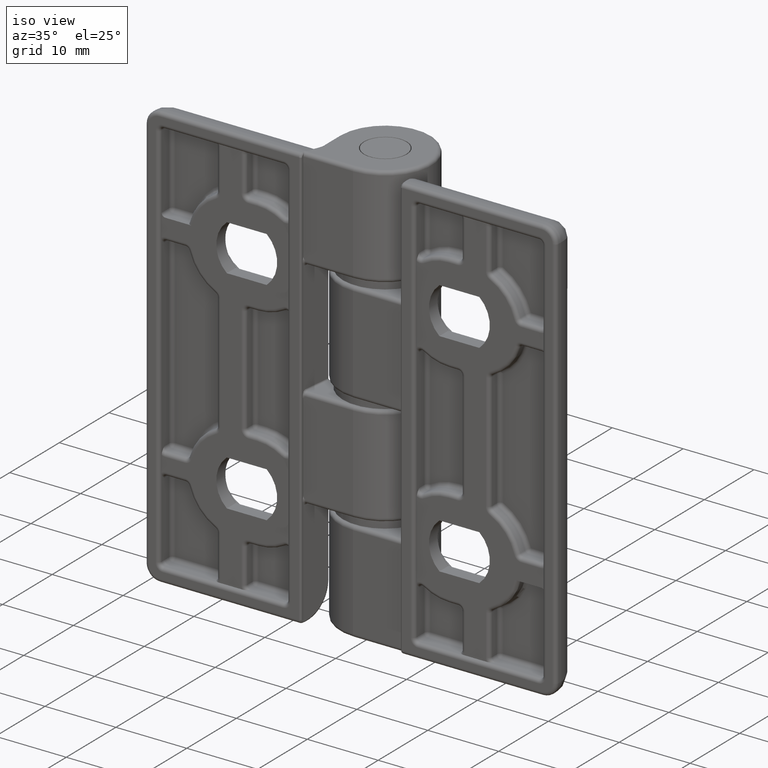
[diagram: clean part render]
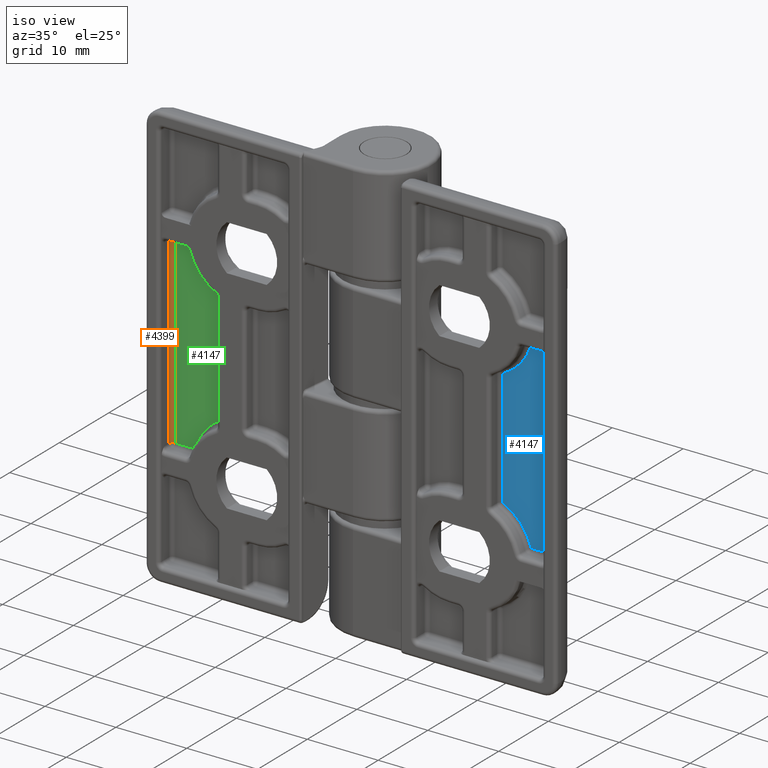
[diagram: same view with three faces highlighted in distinct colors, each labeled with its STEP entity id]
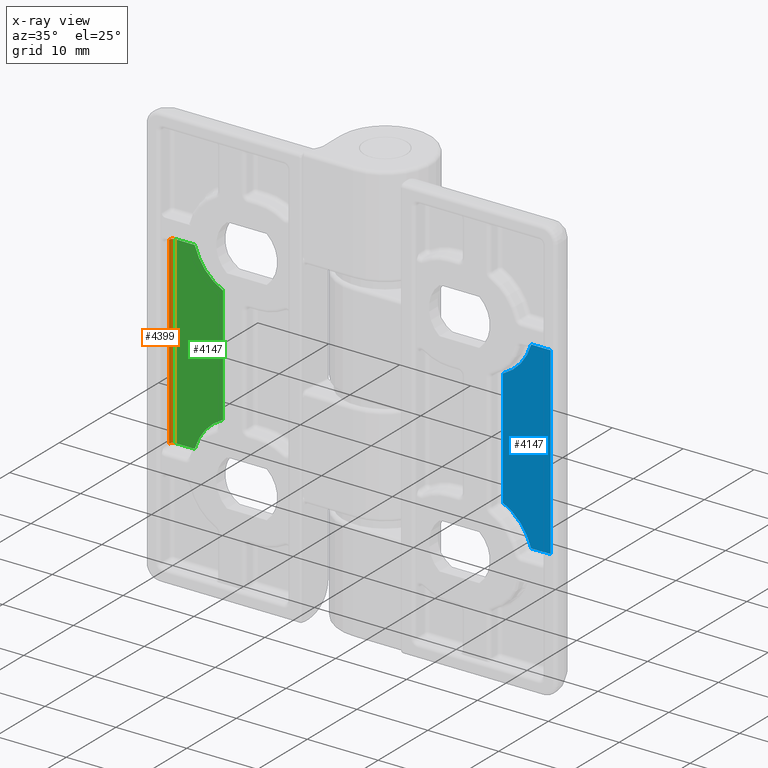
[diagram: x-ray of the same camera — body ghosted, the three highlighted faces saturated]
A machine part, iso view with three faces highlighted in distinct colors.
The next image is the same camera in x-ray (body ghosted, the three faces saturated) — at least one of them is partly hidden behind the body in this view.
Their STEP definitions:

[orange] entity #4399 — the highlighted cylindrical surface (edge-blend (fillet) strip) has radius 0.5 mm, axis along (0, 0, 1).
#264=CYLINDRICAL_SURFACE('',#4982,0.5);
#609=FACE_OUTER_BOUND('',#915,.T.);
#915=EDGE_LOOP('',(#3942,#3943,#3944,#3945));
#1250=CIRCLE('',#4975,0.5);
#1253=CIRCLE('',#4983,0.5);
#1286=LINE('',#6569,#1545);
#1430=LINE('',#8315,#1689);
#1545=VECTOR('',#5072,26.);
#1689=VECTOR('',#5736,26.0000000023713);
#1802=VERTEX_POINT('',#6559);
#1806=VERTEX_POINT('',#6567);
#2033=VERTEX_POINT('',#8311);
#2035=VERTEX_POINT('',#8314);
#2168=EDGE_CURVE('',#1802,#1806,#1286,.T.);
#2509=EDGE_CURVE('',#2033,#2035,#1430,.T.);
#2763=EDGE_CURVE('',#1806,#2035,#1250,.T.);
#2768=EDGE_CURVE('',#1802,#2033,#1253,.T.);
#3942=ORIENTED_EDGE('',*,*,#2168,.T.);
#3943=ORIENTED_EDGE('',*,*,#2763,.T.);
#3944=ORIENTED_EDGE('',*,*,#2509,.F.);
#3945=ORIENTED_EDGE('',*,*,#2768,.F.);
#4399=ADVANCED_FACE('',(#609),#264,.F.);
#4975=AXIS2_PLACEMENT_3D('',#8877,#6376,#6377);
#4982=AXIS2_PLACEMENT_3D('',#8887,#6392,#6393);
#4983=AXIS2_PLACEMENT_3D('',#8888,#6394,#6395);
#5072=DIRECTION('',(0.,-1.,0.));
#5736=DIRECTION('',(0.,-1.,0.));
#6376=DIRECTION('center_axis',(0.,-1.,0.));
#6377=DIRECTION('ref_axis',(0.,0.,-1.));
#6392=DIRECTION('center_axis',(0.,-1.,0.));
#6393=DIRECTION('ref_axis',(0.,0.,-1.));
#6394=DIRECTION('center_axis',(0.,-1.,0.));
#6395=DIRECTION('ref_axis',(0.,0.,-1.));
#6559=CARTESIAN_POINT('',(26.5,13.,4.5));
#6567=CARTESIAN_POINT('',(26.5,-13.,4.5));
#6569=CARTESIAN_POINT('',(26.5,13.,4.5));
#8311=CARTESIAN_POINT('',(27.,13.0000000008888,5.));
#8314=CARTESIAN_POINT('',(27.,-13.0000000014826,5.));
#8315=CARTESIAN_POINT('',(27.,13.,5.));
#8877=CARTESIAN_POINT('Origin',(26.5,-13.,5.));
#8887=CARTESIAN_POINT('Origin',(26.5,27.65603580033,5.));
#8888=CARTESIAN_POINT('Origin',(26.5,13.,5.));

[blue] entity #4147 — the highlighted planar face has unit normal (0, -1, 0).
#357=FACE_OUTER_BOUND('',#650,.T.);
#650=EDGE_LOOP('',(#2804,#2805,#2806,#2807,#2808,#2809));
#961=CIRCLE('',#4445,7.5);
#962=CIRCLE('',#4446,7.5);
#1283=LINE('',#6560,#1542);
#1284=LINE('',#6564,#1543);
#1285=LINE('',#6568,#1544);
#1286=LINE('',#6569,#1545);
#1542=VECTOR('',#5065,2.7715838526);
#1543=VECTOR('',#5068,16.481494165404);
#1544=VECTOR('',#5071,2.7715838526);
#1545=VECTOR('',#5072,26.);
#1801=VERTEX_POINT('',#6558);
#1802=VERTEX_POINT('',#6559);
#1803=VERTEX_POINT('',#6561);
#1804=VERTEX_POINT('',#6563);
#1805=VERTEX_POINT('',#6565);
#1806=VERTEX_POINT('',#6567);
#2163=EDGE_CURVE('',#1801,#1802,#1283,.T.);
#2164=EDGE_CURVE('',#1803,#1801,#961,.T.);
#2165=EDGE_CURVE('',#1804,#1803,#1284,.T.);
#2166=EDGE_CURVE('',#1805,#1804,#962,.T.);
#2167=EDGE_CURVE('',#1806,#1805,#1285,.T.);
#2168=EDGE_CURVE('',#1802,#1806,#1286,.T.);
#2804=ORIENTED_EDGE('',*,*,#2163,.F.);
#2805=ORIENTED_EDGE('',*,*,#2164,.F.);
#2806=ORIENTED_EDGE('',*,*,#2165,.F.);
#2807=ORIENTED_EDGE('',*,*,#2166,.F.);
#2808=ORIENTED_EDGE('',*,*,#2167,.F.);
#2809=ORIENTED_EDGE('',*,*,#2168,.F.);
#4086=PLANE('',#4444);
#4147=ADVANCED_FACE('',(#357),#4086,.T.);
#4444=AXIS2_PLACEMENT_3D('',#6557,#5063,#5064);
#4445=AXIS2_PLACEMENT_3D('',#6562,#5066,#5067);
#4446=AXIS2_PLACEMENT_3D('',#6566,#5069,#5070);
#5063=DIRECTION('center_axis',(0.,0.,1.));
#5064=DIRECTION('ref_axis',(1.,0.,0.));
#5065=DIRECTION('',(1.,0.,0.));
#5066=DIRECTION('center_axis',(0.,0.,1.));
#5067=DIRECTION('ref_axis',(0.4333333333333,-0.901233722306401,0.));
#5068=DIRECTION('',(0.,1.,0.));
#5069=DIRECTION('center_axis',(0.,0.,1.));
#5070=DIRECTION('ref_axis',(0.963788819653389,0.266666666666697,0.));
#5071=DIRECTION('',(-1.,0.,0.));
#5072=DIRECTION('',(0.,-1.,0.));
#6557=CARTESIAN_POINT('Origin',(0.,-30.,4.5));
#6558=CARTESIAN_POINT('',(23.7284161474,13.,4.5));
#6559=CARTESIAN_POINT('',(26.5,13.,4.5));
#6560=CARTESIAN_POINT('',(23.7284161474,13.,4.5));
#6561=CARTESIAN_POINT('',(19.75,8.240747082702,4.5));
#6562=CARTESIAN_POINT('Origin',(16.5,15.,4.5));
#6563=CARTESIAN_POINT('',(19.75,-8.240747082702,4.5));
#6564=CARTESIAN_POINT('',(19.75,-8.240747082702,4.5));
#6565=CARTESIAN_POINT('',(23.7284161474,-13.,4.5));
#6566=CARTESIAN_POINT('Origin',(16.5,-15.,4.5));
#6567=CARTESIAN_POINT('',(26.5,-13.,4.5));
#6568=CARTESIAN_POINT('',(26.5,-13.,4.5));
#6569=CARTESIAN_POINT('',(26.5,13.,4.5));

[green] entity #4147 — the highlighted planar face has unit normal (0, -1, 0).
#357=FACE_OUTER_BOUND('',#650,.T.);
#650=EDGE_LOOP('',(#2804,#2805,#2806,#2807,#2808,#2809));
#961=CIRCLE('',#4445,7.5);
#962=CIRCLE('',#4446,7.5);
#1283=LINE('',#6560,#1542);
#1284=LINE('',#6564,#1543);
#1285=LINE('',#6568,#1544);
#1286=LINE('',#6569,#1545);
#1542=VECTOR('',#5065,2.7715838526);
#1543=VECTOR('',#5068,16.481494165404);
#1544=VECTOR('',#5071,2.7715838526);
#1545=VECTOR('',#5072,26.);
#1801=VERTEX_POINT('',#6558);
#1802=VERTEX_POINT('',#6559);
#1803=VERTEX_POINT('',#6561);
#1804=VERTEX_POINT('',#6563);
#1805=VERTEX_POINT('',#6565);
#1806=VERTEX_POINT('',#6567);
#2163=EDGE_CURVE('',#1801,#1802,#1283,.T.);
#2164=EDGE_CURVE('',#1803,#1801,#961,.T.);
#2165=EDGE_CURVE('',#1804,#1803,#1284,.T.);
#2166=EDGE_CURVE('',#1805,#1804,#962,.T.);
#2167=EDGE_CURVE('',#1806,#1805,#1285,.T.);
#2168=EDGE_CURVE('',#1802,#1806,#1286,.T.);
#2804=ORIENTED_EDGE('',*,*,#2163,.F.);
#2805=ORIENTED_EDGE('',*,*,#2164,.F.);
#2806=ORIENTED_EDGE('',*,*,#2165,.F.);
#2807=ORIENTED_EDGE('',*,*,#2166,.F.);
#2808=ORIENTED_EDGE('',*,*,#2167,.F.);
#2809=ORIENTED_EDGE('',*,*,#2168,.F.);
#4086=PLANE('',#4444);
#4147=ADVANCED_FACE('',(#357),#4086,.T.);
#4444=AXIS2_PLACEMENT_3D('',#6557,#5063,#5064);
#4445=AXIS2_PLACEMENT_3D('',#6562,#5066,#5067);
#4446=AXIS2_PLACEMENT_3D('',#6566,#5069,#5070);
#5063=DIRECTION('center_axis',(0.,0.,1.));
#5064=DIRECTION('ref_axis',(1.,0.,0.));
#5065=DIRECTION('',(1.,0.,0.));
#5066=DIRECTION('center_axis',(0.,0.,1.));
#5067=DIRECTION('ref_axis',(0.4333333333333,-0.901233722306401,0.));
#5068=DIRECTION('',(0.,1.,0.));
#5069=DIRECTION('center_axis',(0.,0.,1.));
#5070=DIRECTION('ref_axis',(0.963788819653389,0.266666666666697,0.));
#5071=DIRECTION('',(-1.,0.,0.));
#5072=DIRECTION('',(0.,-1.,0.));
#6557=CARTESIAN_POINT('Origin',(0.,-30.,4.5));
#6558=CARTESIAN_POINT('',(23.7284161474,13.,4.5));
#6559=CARTESIAN_POINT('',(26.5,13.,4.5));
#6560=CARTESIAN_POINT('',(23.7284161474,13.,4.5));
#6561=CARTESIAN_POINT('',(19.75,8.240747082702,4.5));
#6562=CARTESIAN_POINT('Origin',(16.5,15.,4.5));
#6563=CARTESIAN_POINT('',(19.75,-8.240747082702,4.5));
#6564=CARTESIAN_POINT('',(19.75,-8.240747082702,4.5));
#6565=CARTESIAN_POINT('',(23.7284161474,-13.,4.5));
#6566=CARTESIAN_POINT('Origin',(16.5,-15.,4.5));
#6567=CARTESIAN_POINT('',(26.5,-13.,4.5));
#6568=CARTESIAN_POINT('',(26.5,-13.,4.5));
#6569=CARTESIAN_POINT('',(26.5,13.,4.5));